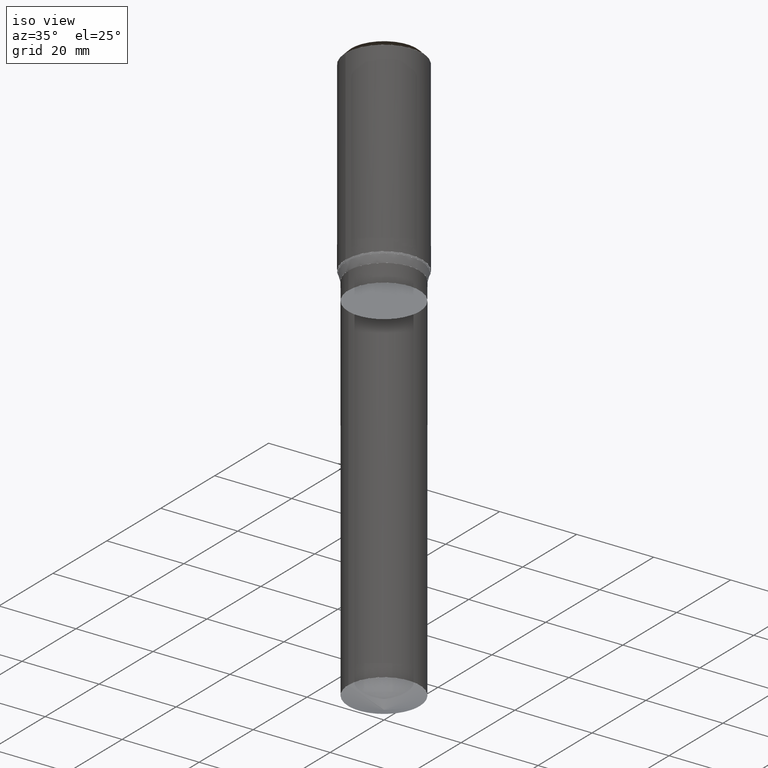
[diagram: clean part render]
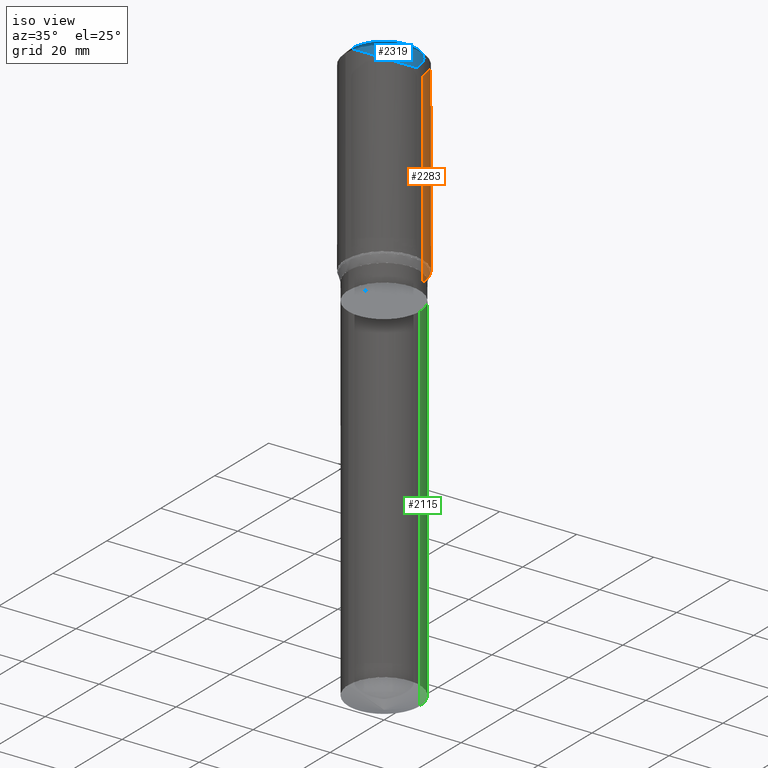
[diagram: same view with three faces highlighted in distinct colors, each labeled with its STEP entity id]
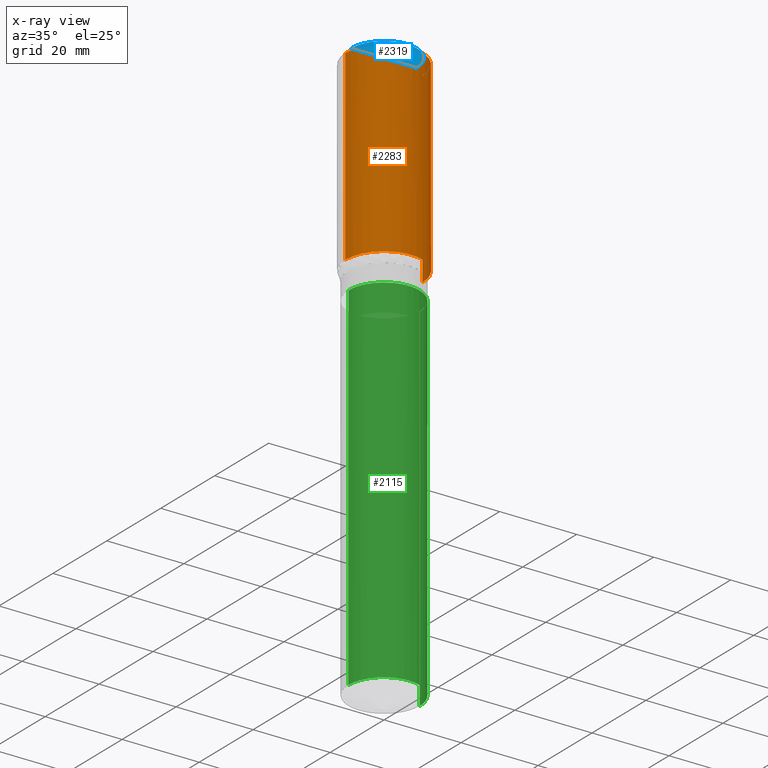
[diagram: x-ray of the same camera — body ghosted, the three highlighted faces saturated]
A machine part, iso view with three faces highlighted in distinct colors.
The next image is the same camera in x-ray (body ghosted, the three faces saturated) — at least one of them is partly hidden behind the body in this view.
Their STEP definitions:

[orange] entity #2283 — the highlighted face is a freeform B-spline surface patch.
#2041=CARTESIAN_POINT('',(10.0,0.0,0.0));
#2042=CARTESIAN_POINT('',(10.0,10.0,0.0));
#2043=CARTESIAN_POINT('',(0.0,10.0,0.0));
#2044=CARTESIAN_POINT('',(-10.0,10.0,0.0));
#2045=CARTESIAN_POINT('',(-10.0,0.0,0.0));
#2046=CARTESIAN_POINT('',(10.0,0.0,48.5));
#2047=CARTESIAN_POINT('',(10.0,10.0,48.5));
#2048=CARTESIAN_POINT('',(0.0,10.0,48.5));
#2049=CARTESIAN_POINT('',(-10.0,10.0,48.5));
#2050=CARTESIAN_POINT('',(-10.0,0.0,48.5));
#2264=(
BOUNDED_SURFACE()
B_SPLINE_SURFACE(1,2,(
(#2041,#2042,#2043,#2044,#2045),
(#2046,#2047,#2048,#2049,#2050)
), .UNSPECIFIED.,.F.,.F.,.F.)
B_SPLINE_SURFACE_WITH_KNOTS((2,2),(3,2,3),(
0.0,1.0),(
0.0,0.5,1.0), .UNSPECIFIED.)
GEOMETRIC_REPRESENTATION_ITEM()
RATIONAL_B_SPLINE_SURFACE(((1.0,0.707106781187,1.0,0.707106781187,1.0),
(1.0,0.707106781187,1.0,0.707106781187,1.0)
))
REPRESENTATION_ITEM('')
SURFACE()
);
#2265=(
BOUNDED_CURVE()
B_SPLINE_CURVE(2,(#2045,#2044,#2043,#2042,#2041),.UNSPECIFIED.,.F.,.F.)
B_SPLINE_CURVE_WITH_KNOTS((3,2,3),
(0.0,0.5,1.0),.UNSPECIFIED.)
CURVE()
GEOMETRIC_REPRESENTATION_ITEM()
RATIONAL_B_SPLINE_CURVE((1.0,0.707106781187,1.0,0.707106781187,1.0))
REPRESENTATION_ITEM('')
);
#2266=(
BOUNDED_CURVE()
B_SPLINE_CURVE(1,(#2041,#2046),.UNSPECIFIED.,.F.,.F.)
B_SPLINE_CURVE_WITH_KNOTS((2,2),
(0.0,1.0),.UNSPECIFIED.)
CURVE()
GEOMETRIC_REPRESENTATION_ITEM()
RATIONAL_B_SPLINE_CURVE((1.0,1.0))
REPRESENTATION_ITEM('')
);
#2267=(
BOUNDED_CURVE()
B_SPLINE_CURVE(2,(#2046,#2047,#2048,#2049,#2050),.UNSPECIFIED.,.F.,.F.)
B_SPLINE_CURVE_WITH_KNOTS((3,2,3),
(0.0,0.5,1.0),.UNSPECIFIED.)
CURVE()
GEOMETRIC_REPRESENTATION_ITEM()
RATIONAL_B_SPLINE_CURVE((1.0,0.707106781187,1.0,0.707106781187,1.0))
REPRESENTATION_ITEM('')
);
#2268=(
BOUNDED_CURVE()
B_SPLINE_CURVE(1,(#2050,#2045),.UNSPECIFIED.,.F.,.F.)
B_SPLINE_CURVE_WITH_KNOTS((2,2),
(0.0,1.0),.UNSPECIFIED.)
CURVE()
GEOMETRIC_REPRESENTATION_ITEM()
RATIONAL_B_SPLINE_CURVE((1.0,1.0))
REPRESENTATION_ITEM('')
);
#2269=VERTEX_POINT('',#2041);
#2270=VERTEX_POINT('',#2045);
#2271=VERTEX_POINT('',#2046);
#2272=VERTEX_POINT('',#2050);
#2273=EDGE_CURVE('',#2270,#2269,#2265,.T.);
#2274=EDGE_CURVE('',#2269,#2271,#2266,.T.);
#2275=EDGE_CURVE('',#2271,#2272,#2267,.T.);
#2276=EDGE_CURVE('',#2272,#2270,#2268,.T.);
#2277=ORIENTED_EDGE('',*,*,#2273,.T.);
#2278=ORIENTED_EDGE('',*,*,#2274,.T.);
#2279=ORIENTED_EDGE('',*,*,#2275,.T.);
#2280=ORIENTED_EDGE('',*,*,#2276,.T.);
#2281=EDGE_LOOP('',(#2277,#2278,#2279,#2280));
#2282=FACE_OUTER_BOUND('',#2281,.T.);
#2283=ADVANCED_FACE('',(#2282),#2264,.T.);

[blue] entity #2319 — the highlighted face is a freeform B-spline surface patch.
#2051=CARTESIAN_POINT('',(8.5,0.0,50.0));
#2052=CARTESIAN_POINT('',(8.5,8.5,50.0));
#2053=CARTESIAN_POINT('',(0.0,8.5,50.0));
#2054=CARTESIAN_POINT('',(-8.5,8.5,50.0));
#2055=CARTESIAN_POINT('',(-8.5,0.0,50.0));
#2056=CARTESIAN_POINT('',(0.0,0.0,50.0));
#2304=(
BOUNDED_SURFACE()
B_SPLINE_SURFACE(1,2,(
(#2051,#2052,#2053,#2054,#2055),
(#2056,#2056,#2056,#2056,#2056)
), .UNSPECIFIED.,.F.,.F.,.F.)
B_SPLINE_SURFACE_WITH_KNOTS((2,2),(3,2,3),(
0.0,1.0),(
0.0,0.5,1.0), .UNSPECIFIED.)
GEOMETRIC_REPRESENTATION_ITEM()
RATIONAL_B_SPLINE_SURFACE(((1.0,0.707106781187,1.0,0.707106781187,1.0),
(1.0,0.707106781187,1.0,0.707106781187,1.0)
))
REPRESENTATION_ITEM('')
SURFACE()
);
#2305=(
BOUNDED_CURVE()
B_SPLINE_CURVE(2,(#2055,#2054,#2053,#2052,#2051),.UNSPECIFIED.,.F.,.F.)
B_SPLINE_CURVE_WITH_KNOTS((3,2,3),
(0.0,0.5,1.0),.UNSPECIFIED.)
CURVE()
GEOMETRIC_REPRESENTATION_ITEM()
RATIONAL_B_SPLINE_CURVE((1.0,0.707106781187,1.0,0.707106781187,1.0))
REPRESENTATION_ITEM('')
);
#2306=(
BOUNDED_CURVE()
B_SPLINE_CURVE(1,(#2051,#2056),.UNSPECIFIED.,.F.,.F.)
B_SPLINE_CURVE_WITH_KNOTS((2,2),
(0.0,1.0),.UNSPECIFIED.)
CURVE()
GEOMETRIC_REPRESENTATION_ITEM()
RATIONAL_B_SPLINE_CURVE((1.0,1.0))
REPRESENTATION_ITEM('')
);
#2307=(
BOUNDED_CURVE()
B_SPLINE_CURVE(1,(#2056,#2055),.UNSPECIFIED.,.F.,.F.)
B_SPLINE_CURVE_WITH_KNOTS((2,2),
(0.0,1.0),.UNSPECIFIED.)
CURVE()
GEOMETRIC_REPRESENTATION_ITEM()
RATIONAL_B_SPLINE_CURVE((1.0,1.0))
REPRESENTATION_ITEM('')
);
#2308=VERTEX_POINT('',#2051);
#2309=VERTEX_POINT('',#2055);
#2310=VERTEX_POINT('',#2056);
#2311=EDGE_CURVE('',#2309,#2308,#2305,.T.);
#2312=EDGE_CURVE('',#2308,#2310,#2306,.T.);
#2313=EDGE_CURVE('',#2310,#2309,#2307,.T.);
#2314=ORIENTED_EDGE('',*,*,#2311,.T.);
#2315=ORIENTED_EDGE('',*,*,#2312,.T.);
#2316=ORIENTED_EDGE('',*,*,#2313,.T.);
#2317=EDGE_LOOP('',(#2314,#2315,#2316));
#2318=FACE_OUTER_BOUND('',#2317,.T.);
#2319=ADVANCED_FACE('',(#2318),#2304,.T.);

[green] entity #2115 — the highlighted face is a freeform B-spline surface patch.
#2009=CARTESIAN_POINT('',(9.25,0.0,-99.633313438714));
#2010=CARTESIAN_POINT('',(9.25,9.25,-99.633313438714));
#2011=CARTESIAN_POINT('',(0.0,9.25,-99.633313438714));
#2012=CARTESIAN_POINT('',(-9.25,9.25,-99.633313438714));
#2013=CARTESIAN_POINT('',(-9.25,0.0,-99.633313438714));
#2014=CARTESIAN_POINT('',(9.25,0.0,-7.000038105677));
#2015=CARTESIAN_POINT('',(9.25,9.25,-7.000038105677));
#2016=CARTESIAN_POINT('',(0.0,9.25,-7.000038105677));
#2017=CARTESIAN_POINT('',(-9.25,9.25,-7.000038105677));
#2018=CARTESIAN_POINT('',(-9.25,0.0,-7.000038105677));
#2096=(
BOUNDED_SURFACE()
B_SPLINE_SURFACE(1,2,(
(#2009,#2010,#2011,#2012,#2013),
(#2014,#2015,#2016,#2017,#2018)
), .UNSPECIFIED.,.F.,.F.,.F.)
B_SPLINE_SURFACE_WITH_KNOTS((2,2),(3,2,3),(
0.0,1.0),(
0.0,0.5,1.0), .UNSPECIFIED.)
GEOMETRIC_REPRESENTATION_ITEM()
RATIONAL_B_SPLINE_SURFACE(((1.0,0.707106781187,1.0,0.707106781187,1.0),
(1.0,0.707106781187,1.0,0.707106781187,1.0)
))
REPRESENTATION_ITEM('')
SURFACE()
);
#2097=(
BOUNDED_CURVE()
B_SPLINE_CURVE(2,(#2013,#2012,#2011,#2010,#2009),.UNSPECIFIED.,.F.,.F.)
B_SPLINE_CURVE_WITH_KNOTS((3,2,3),
(0.0,0.5,1.0),.UNSPECIFIED.)
CURVE()
GEOMETRIC_REPRESENTATION_ITEM()
RATIONAL_B_SPLINE_CURVE((1.0,0.707106781187,1.0,0.707106781187,1.0))
REPRESENTATION_ITEM('')
);
#2098=(
BOUNDED_CURVE()
B_SPLINE_CURVE(1,(#2009,#2014),.UNSPECIFIED.,.F.,.F.)
B_SPLINE_CURVE_WITH_KNOTS((2,2),
(0.0,1.0),.UNSPECIFIED.)
CURVE()
GEOMETRIC_REPRESENTATION_ITEM()
RATIONAL_B_SPLINE_CURVE((1.0,1.0))
REPRESENTATION_ITEM('')
);
#2099=(
BOUNDED_CURVE()
B_SPLINE_CURVE(2,(#2014,#2015,#2016,#2017,#2018),.UNSPECIFIED.,.F.,.F.)
B_SPLINE_CURVE_WITH_KNOTS((3,2,3),
(0.0,0.5,1.0),.UNSPECIFIED.)
CURVE()
GEOMETRIC_REPRESENTATION_ITEM()
RATIONAL_B_SPLINE_CURVE((1.0,0.707106781187,1.0,0.707106781187,1.0))
REPRESENTATION_ITEM('')
);
#2100=(
BOUNDED_CURVE()
B_SPLINE_CURVE(1,(#2018,#2013),.UNSPECIFIED.,.F.,.F.)
B_SPLINE_CURVE_WITH_KNOTS((2,2),
(0.0,1.0),.UNSPECIFIED.)
CURVE()
GEOMETRIC_REPRESENTATION_ITEM()
RATIONAL_B_SPLINE_CURVE((1.0,1.0))
REPRESENTATION_ITEM('')
);
#2101=VERTEX_POINT('',#2009);
#2102=VERTEX_POINT('',#2013);
#2103=VERTEX_POINT('',#2014);
#2104=VERTEX_POINT('',#2018);
#2105=EDGE_CURVE('',#2102,#2101,#2097,.T.);
#2106=EDGE_CURVE('',#2101,#2103,#2098,.T.);
#2107=EDGE_CURVE('',#2103,#2104,#2099,.T.);
#2108=EDGE_CURVE('',#2104,#2102,#2100,.T.);
#2109=ORIENTED_EDGE('',*,*,#2105,.T.);
#2110=ORIENTED_EDGE('',*,*,#2106,.T.);
#2111=ORIENTED_EDGE('',*,*,#2107,.T.);
#2112=ORIENTED_EDGE('',*,*,#2108,.T.);
#2113=EDGE_LOOP('',(#2109,#2110,#2111,#2112));
#2114=FACE_OUTER_BOUND('',#2113,.T.);
#2115=ADVANCED_FACE('',(#2114),#2096,.T.);